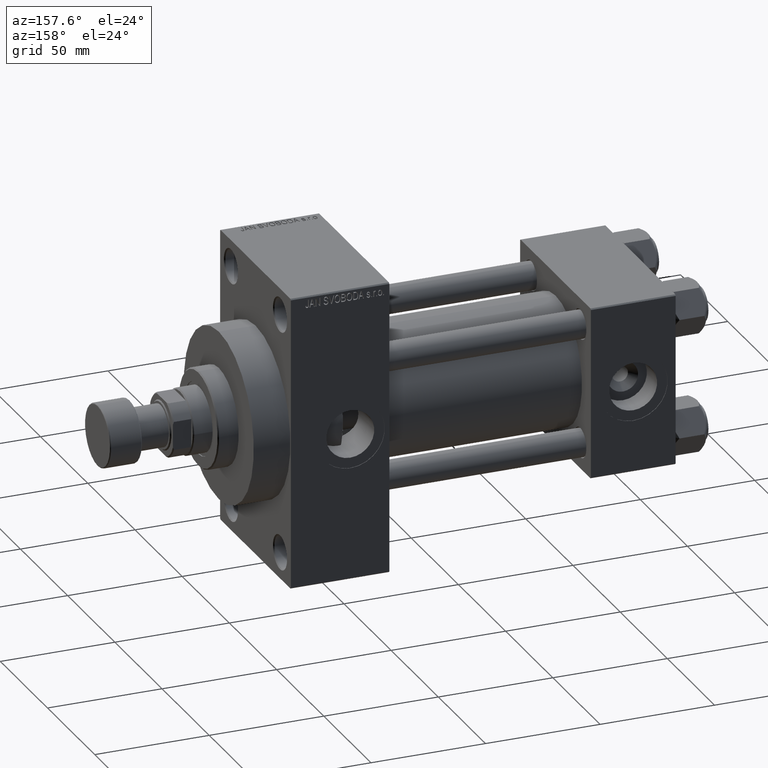
[diagram: clean part render]
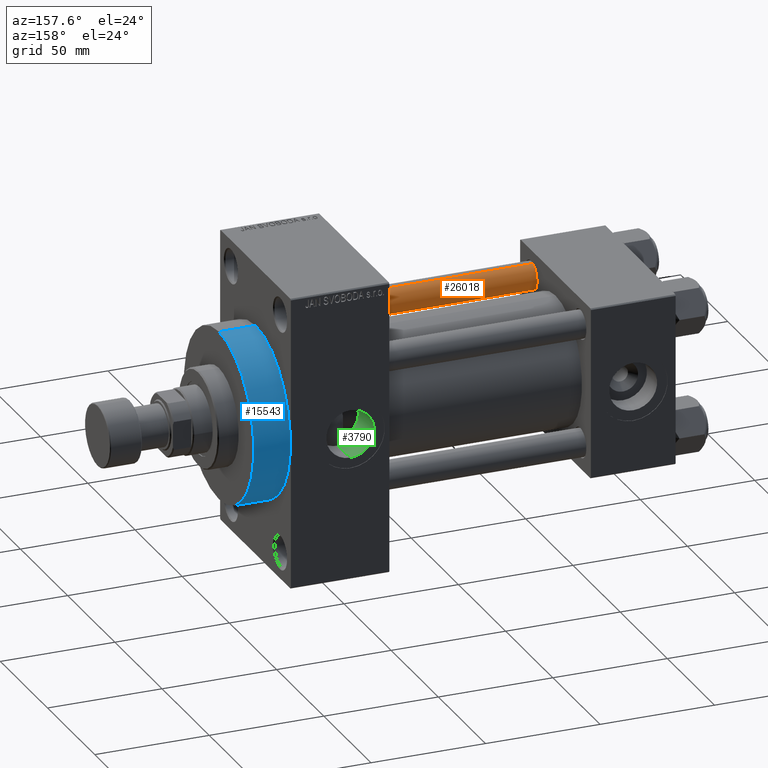
[diagram: same view with three faces highlighted in distinct colors, each labeled with its STEP entity id]
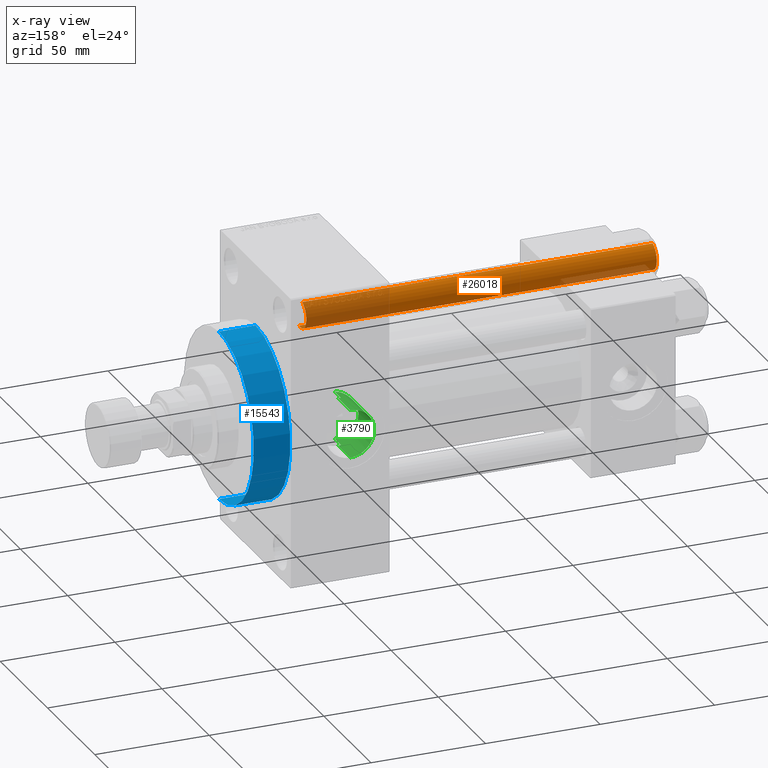
[diagram: x-ray of the same camera — body ghosted, the three highlighted faces saturated]
A machine part, auxiliary view with three faces highlighted in distinct colors.
The next image is the same camera in x-ray (body ghosted, the three faces saturated) — at least one of them is partly hidden behind the body in this view.
Their STEP definitions:

[orange] entity #26018 — the highlighted cylindrical surface (edge-blend (fillet) strip) has radius 6 mm, axis along (1, 0, 0).
#858 = ORIENTED_EDGE ( 'NONE', *, *, #23493, .T. ) ;
#2339 = CIRCLE ( 'NONE', #12753, 6.000000000000000888 ) ;
#2560 = DIRECTION ( 'NONE',  ( -0.000000000000000000, -0.000000000000000000, -1.000000000000000000 ) ) ;
#2784 = CARTESIAN_POINT ( 'NONE',  ( -6.000000000000000888, 0.000000000000000000, 153.5000000000000000 ) ) ;
#3156 = VERTEX_POINT ( 'NONE', #9412 ) ;
#4800 = DIRECTION ( 'NONE',  ( 1.000000000000000000, 0.000000000000000000, 0.000000000000000000 ) ) ;
#5482 = LINE ( 'NONE', #9498, #48405 ) ;
#5575 = CARTESIAN_POINT ( 'NONE',  ( -6.000000000000000888, 0.000000000000000000, 0.5000000000000281997 ) ) ;
#6011 = ORIENTED_EDGE ( 'NONE', *, *, #36064, .T. ) ;
#9412 = CARTESIAN_POINT ( 'NONE',  ( 6.000000000000000888, 7.347880794884120722E-16, 153.5000000000000000 ) ) ;
#9498 = CARTESIAN_POINT ( 'NONE',  ( 6.000000000000000888, 7.347880794884120722E-16, 154.0000000000000000 ) ) ;
#9518 = DIRECTION ( 'NONE',  ( -0.000000000000000000, -0.000000000000000000, 1.000000000000000000 ) ) ;
#11120 = DIRECTION ( 'NONE',  ( -0.000000000000000000, -0.000000000000000000, -1.000000000000000000 ) ) ;
#12575 = CARTESIAN_POINT ( 'NONE',  ( 6.000000000000000888, 7.347880794884120722E-16, 0.5000000000000281997 ) ) ;
#12753 = AXIS2_PLACEMENT_3D ( 'NONE', #43980, #9518, #48007 ) ;
#13937 = AXIS2_PLACEMENT_3D ( 'NONE', #47074, #43048, #4800 ) ;
#15170 = AXIS2_PLACEMENT_3D ( 'NONE', #45579, #11120, #19162 ) ;
#16614 = VERTEX_POINT ( 'NONE', #12575 ) ;
#17054 = DIRECTION ( 'NONE',  ( -0.000000000000000000, -0.000000000000000000, -1.000000000000000000 ) ) ;
#19162 = DIRECTION ( 'NONE',  ( -1.000000000000000000, 0.000000000000000000, 0.000000000000000000 ) ) ;
#23170 = VERTEX_POINT ( 'NONE', #2784 ) ;
#23493 = EDGE_CURVE ( 'NONE', #46792, #16614, #2339, .T. ) ;
#25319 = ORIENTED_EDGE ( 'NONE', *, *, #34535, .F. ) ;
#26018 = ADVANCED_FACE ( 'NONE', ( #30256 ), #45340, .T. ) ;
#29496 = CARTESIAN_POINT ( 'NONE',  ( -6.000000000000000888, 0.000000000000000000, 154.0000000000000000 ) ) ;
#29839 = EDGE_CURVE ( 'NONE', #23170, #46792, #33511, .T. ) ;
#30256 = FACE_OUTER_BOUND ( 'NONE', #32065, .T. ) ;
#32065 = EDGE_LOOP ( 'NONE', ( #25319, #6011, #39587, #858 ) ) ;
#33511 = LINE ( 'NONE', #29496, #38567 ) ;
#34535 = EDGE_CURVE ( 'NONE', #3156, #16614, #5482, .T. ) ;
#36064 = EDGE_CURVE ( 'NONE', #3156, #23170, #46085, .T. ) ;
#38567 = VECTOR ( 'NONE', #2560, 1000.000000000000000 ) ;
#39587 = ORIENTED_EDGE ( 'NONE', *, *, #29839, .T. ) ;
#43048 = DIRECTION ( 'NONE',  ( 0.000000000000000000, 0.000000000000000000, -1.000000000000000000 ) ) ;
#43980 = CARTESIAN_POINT ( 'NONE',  ( 0.000000000000000000, 0.000000000000000000, 0.5000000000000281997 ) ) ;
#45340 = CYLINDRICAL_SURFACE ( 'NONE', #15170, 6.000000000000000888 ) ;
#45579 = CARTESIAN_POINT ( 'NONE',  ( 0.000000000000000000, 0.000000000000000000, 154.0000000000000000 ) ) ;
#46085 = CIRCLE ( 'NONE', #13937, 6.000000000000000888 ) ;
#46792 = VERTEX_POINT ( 'NONE', #5575 ) ;
#47074 = CARTESIAN_POINT ( 'NONE',  ( 0.000000000000000000, 0.000000000000000000, 153.5000000000000000 ) ) ;
#48007 = DIRECTION ( 'NONE',  ( 1.000000000000000000, 0.000000000000000000, 0.000000000000000000 ) ) ;
#48405 = VECTOR ( 'NONE', #17054, 1000.000000000000000 ) ;

[blue] entity #15543 — the highlighted cylindrical surface (partial cylindrical patch) has radius 37 mm, axis along (-1, -0, -0).
#1289 = AXIS2_PLACEMENT_3D ( 'NONE', #4878, #16951, #24269 ) ;
#2068 = AXIS2_PLACEMENT_3D ( 'NONE', #6374, #48870, #21469 ) ;
#2404 = VERTEX_POINT ( 'NONE', #22717 ) ;
#3523 = VERTEX_POINT ( 'NONE', #19867 ) ;
#4878 = CARTESIAN_POINT ( 'NONE',  ( 184.0000000000000000, 0.000000000000000000, 0.000000000000000000 ) ) ;
#6104 = LINE ( 'NONE', #20697, #49230 ) ;
#6374 = CARTESIAN_POINT ( 'NONE',  ( 167.9999999999999716, 0.000000000000000000, 0.000000000000000000 ) ) ;
#8877 = DIRECTION ( 'NONE',  ( -1.000000000000000000, -0.000000000000000000, -0.000000000000000000 ) ) ;
#9812 = VERTEX_POINT ( 'NONE', #12320 ) ;
#10131 = CIRCLE ( 'NONE', #2068, 37.00000000000000000 ) ;
#11377 = ORIENTED_EDGE ( 'NONE', *, *, #48682, .T. ) ;
#12320 = CARTESIAN_POINT ( 'NONE',  ( 167.9999999999999716, 0.000000000000000000, 37.00000000000000000 ) ) ;
#14341 = VECTOR ( 'NONE', #43822, 1000.000000000000000 ) ;
#15543 = ADVANCED_FACE ( 'NONE', ( #48358 ), #29261, .T. ) ;
#15602 = ORIENTED_EDGE ( 'NONE', *, *, #39070, .F. ) ;
#16112 = CARTESIAN_POINT ( 'NONE',  ( 184.0000000000000000, 4.531193156845206793E-15, -37.00000000000000000 ) ) ;
#16951 = DIRECTION ( 'NONE',  ( 1.000000000000000000, 0.000000000000000000, 0.000000000000000000 ) ) ;
#18318 = VERTEX_POINT ( 'NONE', #16112 ) ;
#18956 = CIRCLE ( 'NONE', #1289, 37.00000000000000000 ) ;
#19867 = CARTESIAN_POINT ( 'NONE',  ( 184.0000000000000000, 0.000000000000000000, 37.00000000000000000 ) ) ;
#20697 = CARTESIAN_POINT ( 'NONE',  ( 184.0000000000000000, 0.000000000000000000, 37.00000000000000000 ) ) ;
#21469 = DIRECTION ( 'NONE',  ( 0.000000000000000000, 0.000000000000000000, -1.000000000000000000 ) ) ;
#22193 = DIRECTION ( 'NONE',  ( 0.000000000000000000, 0.000000000000000000, 1.000000000000000000 ) ) ;
#22717 = CARTESIAN_POINT ( 'NONE',  ( 167.9999999999999716, 4.531193156845206793E-15, -37.00000000000000000 ) ) ;
#24269 = DIRECTION ( 'NONE',  ( 0.000000000000000000, 0.000000000000000000, -1.000000000000000000 ) ) ;
#25713 = EDGE_LOOP ( 'NONE', ( #46043, #11377, #47084, #15602 ) ) ;
#29261 = CYLINDRICAL_SURFACE ( 'NONE', #34728, 37.00000000000000000 ) ;
#34728 = AXIS2_PLACEMENT_3D ( 'NONE', #37538, #37296, #22193 ) ;
#36033 = CARTESIAN_POINT ( 'NONE',  ( 184.0000000000000000, 4.531193156845206793E-15, -37.00000000000000000 ) ) ;
#37296 = DIRECTION ( 'NONE',  ( -1.000000000000000000, -0.000000000000000000, -0.000000000000000000 ) ) ;
#37538 = CARTESIAN_POINT ( 'NONE',  ( 184.0000000000000000, 0.000000000000000000, 0.000000000000000000 ) ) ;
#39070 = EDGE_CURVE ( 'NONE', #3523, #9812, #6104, .T. ) ;
#39560 = LINE ( 'NONE', #36033, #14341 ) ;
#43822 = DIRECTION ( 'NONE',  ( -1.000000000000000000, -0.000000000000000000, -0.000000000000000000 ) ) ;
#46043 = ORIENTED_EDGE ( 'NONE', *, *, #46427, .F. ) ;
#46427 = EDGE_CURVE ( 'NONE', #18318, #3523, #18956, .T. ) ;
#46496 = EDGE_CURVE ( 'NONE', #2404, #9812, #10131, .T. ) ;
#47084 = ORIENTED_EDGE ( 'NONE', *, *, #46496, .T. ) ;
#48358 = FACE_OUTER_BOUND ( 'NONE', #25713, .T. ) ;
#48682 = EDGE_CURVE ( 'NONE', #18318, #2404, #39560, .T. ) ;
#48870 = DIRECTION ( 'NONE',  ( 1.000000000000000000, 0.000000000000000000, 0.000000000000000000 ) ) ;
#49230 = VECTOR ( 'NONE', #8877, 1000.000000000000000 ) ;

[green] entity #3790 — the highlighted cylindrical surface (edge-blend (fillet) strip) has radius 10.48 mm, axis along (0, 1, 0).
#854 = CARTESIAN_POINT ( 'NONE',  ( 138.2648511999845482, 18.00804264202515270, -9.796911922746353696 ) ) ;
#1131 = CARTESIAN_POINT ( 'NONE',  ( 142.0000000000000284, 37.29999999999999005, -10.47999999999998799 ) ) ;
#1839 = CARTESIAN_POINT ( 'NONE',  ( 132.0031508505379350, 20.25711897762383984, 3.161628577960766684 ) ) ;
#2168 = CARTESIAN_POINT ( 'NONE',  ( 141.1611364518797984, 24.35049096341793273, 10.45498279016080012 ) ) ;
#2306 = EDGE_CURVE ( 'NONE', #32863, #18586, #28785, .T. ) ;
#2587 = CARTESIAN_POINT ( 'NONE',  ( 131.5957902639762267, 20.46134169501556599, -1.299266796120100764 ) ) ;
#2839 = CARTESIAN_POINT ( 'NONE',  ( 131.5775683569960961, 20.47037528635599202, 1.274177104114178727 ) ) ;
#3050 = B_SPLINE_CURVE_WITH_KNOTS ( 'NONE', 3,
 ( #40662, #2168, #48211, #44438 ),
 .UNSPECIFIED., .F., .F.,
 ( 4, 4 ),
 ( 0.000000000000000000, 0.001255586767787714641 ),
 .UNSPECIFIED. ) ;
#3790 = ADVANCED_FACE ( 'NONE', ( #10542 ), #29170, .F. ) ;
#5070 = CIRCLE ( 'NONE', #24365, 10.47999999999998622 ) ;
#5624 = CARTESIAN_POINT ( 'NONE',  ( 138.2603242755634199, 18.00896673207868659, 9.795222948000837704 ) ) ;
#6117 = CARTESIAN_POINT ( 'NONE',  ( 131.9940503003028596, 20.26077342853018237, -3.179994118914070356 ) ) ;
#6131 = DIRECTION ( 'NONE',  ( -0.000000000000000000, 1.000000000000000000, -0.000000000000000000 ) ) ;
#6363 = CARTESIAN_POINT ( 'NONE',  ( 131.5202887705627290, 20.49985237489623913, -0.3308603822798242833 ) ) ;
#6409 = CARTESIAN_POINT ( 'NONE',  ( 141.1580741051582493, 24.35064928096444703, -10.45461191700780645 ) ) ;
#6969 = ORIENTED_EDGE ( 'NONE', *, *, #44501, .F. ) ;
#8534 = VECTOR ( 'NONE', #22227, 1000.000000000000000 ) ;
#8638 = VECTOR ( 'NONE', #6131, 1000.000000000000000 ) ;
#9366 = ORIENTED_EDGE ( 'NONE', *, *, #38749, .F. ) ;
#9444 = VERTEX_POINT ( 'NONE', #49181 ) ;
#9642 = CARTESIAN_POINT ( 'NONE',  ( 131.6413500805443846, 20.43816521463577374, -1.622339351879672487 ) ) ;
#9897 = CARTESIAN_POINT ( 'NONE',  ( 140.7400000000000091, 17.66372554134603945, 10.40398000767012299 ) ) ;
#10147 = CARTESIAN_POINT ( 'NONE',  ( 137.6797447738802020, 18.13843621863674826, -9.553335258510079697 ) ) ;
#10295 = CARTESIAN_POINT ( 'NONE',  ( 142.0000000000000284, -29.64191626734003648, 10.47999999999998444 ) ) ;
#10542 = FACE_OUTER_BOUND ( 'NONE', #16280, .T. ) ;
#10642 = CARTESIAN_POINT ( 'NONE',  ( 132.1038390309689703, 20.20751560694123938, 3.463692888950883564 ) ) ;
#11241 = ORIENTED_EDGE ( 'NONE', *, *, #47450, .T. ) ;
#11660 = VECTOR ( 'NONE', #14220, 1000.000000000000000 ) ;
#12247 = ORIENTED_EDGE ( 'NONE', *, *, #21833, .T. ) ;
#13656 = CARTESIAN_POINT ( 'NONE',  ( 139.4678957388831577, 17.78974368295221353, 10.18933358872179795 ) ) ;
#13701 = CARTESIAN_POINT ( 'NONE',  ( 142.0000000000000284, 24.33967132070604933, -10.47999999999998799 ) ) ;
#13911 = CARTESIAN_POINT ( 'NONE',  ( 134.5883649652937208, 19.11041985978089031, 7.435544696446130253 ) ) ;
#14220 = DIRECTION ( 'NONE',  ( -0.000000000000000000, 1.000000000000000000, -0.000000000000000000 ) ) ;
#16280 = EDGE_LOOP ( 'NONE', ( #9366, #12247, #41880, #46671, #6969, #11241, #21061, #43303 ) ) ;
#16448 = CARTESIAN_POINT ( 'NONE',  ( 138.5622284196643079, 17.94851741335674333, -9.905176136510938534 ) ) ;
#17186 = CARTESIAN_POINT ( 'NONE',  ( 136.0285517498637660, 18.59748531110673753, 8.634753340253860543 ) ) ;
#17432 = CARTESIAN_POINT ( 'NONE',  ( 133.7616963509113930, 19.44597719880566444, -6.507545042971039528 ) ) ;
#17683 = CARTESIAN_POINT ( 'NONE',  ( 136.5540551289639666, 18.43336478924038957, -8.976070117816941973 ) ) ;
#17923 = DIRECTION ( 'NONE',  ( 0.000000000000000000, 0.000000000000000000, 1.000000000000000000 ) ) ;
#17928 = CARTESIAN_POINT ( 'NONE',  ( 133.3865427488642865, 19.60931742929915345, 6.003004479396524040 ) ) ;
#18179 = CARTESIAN_POINT ( 'NONE',  ( 140.0932392917489722, 17.70986068370255140, 10.32565243574135394 ) ) ;
#18211 = VERTEX_POINT ( 'NONE', #1131 ) ;
#18586 = VERTEX_POINT ( 'NONE', #30915 ) ;
#18923 = DIRECTION ( 'NONE',  ( 0.000000000000000000, 1.000000000000000000, 0.000000000000000000 ) ) ;
#19435 = VERTEX_POINT ( 'NONE', #41043 ) ;
#19959 = CARTESIAN_POINT ( 'NONE',  ( 140.0935359396745810, 17.70983952302580278, -10.32568836202974971 ) ) ;
#21061 = ORIENTED_EDGE ( 'NONE', *, *, #26789, .F. ) ;
#21237 = CARTESIAN_POINT ( 'NONE',  ( 140.7400000000000091, -29.64191626734003648, 10.40398000767012299 ) ) ;
#21711 = CARTESIAN_POINT ( 'NONE',  ( 132.8934847984987471, 19.83246682013213302, 5.196259042236620829 ) ) ;
#21833 = EDGE_CURVE ( 'NONE', #19435, #18211, #33355, .T. ) ;
#21965 = CARTESIAN_POINT ( 'NONE',  ( 136.0314513987549674, 18.59653710660908033, -8.636815275402122793 ) ) ;
#22227 = DIRECTION ( 'NONE',  ( 0.000000000000000000, -1.000000000000000000, 0.000000000000000000 ) ) ;
#23676 = CARTESIAN_POINT ( 'NONE',  ( 142.0000000000000284, 24.33967132070604933, 10.47999999999998444 ) ) ;
#24365 = AXIS2_PLACEMENT_3D ( 'NONE', #45584, #18923, #17923 ) ;
#25002 = CARTESIAN_POINT ( 'NONE',  ( 131.7549241387679899, 20.38083843111444082, 2.230218096741756195 ) ) ;
#25254 = CARTESIAN_POINT ( 'NONE',  ( 131.5353429949686870, 20.49214410358180416, -0.6531678235494173812 ) ) ;
#25500 = CARTESIAN_POINT ( 'NONE',  ( 133.3906553486646089, 19.60752197575040867, -6.008635476422266031 ) ) ;
#25644 = DIRECTION ( 'NONE',  ( -0.000000000000000000, 1.000000000000000000, -0.000000000000000000 ) ) ;
#26789 = EDGE_CURVE ( 'NONE', #32863, #29705, #36216, .T. ) ;
#27211 = VERTEX_POINT ( 'NONE', #23676 ) ;
#27980 = AXIS2_PLACEMENT_3D ( 'NONE', #44741, #25644, #40968 ) ;
#28589 = CARTESIAN_POINT ( 'NONE',  ( 140.7400000000000091, 17.66372554134603945, 10.40398000767012299 ) ) ;
#28785 = LINE ( 'NONE', #44361, #8638 ) ;
#29023 = CARTESIAN_POINT ( 'NONE',  ( 132.4587195145564351, 20.03597512078205867, 4.346863487503871859 ) ) ;
#29170 = CYLINDRICAL_SURFACE ( 'NONE', #27980, 10.47999999999998622 ) ;
#29680 = CARTESIAN_POINT ( 'NONE',  ( 140.7400000000000091, 17.66372554134603945, -10.40398000767012654 ) ) ;
#29705 = VERTEX_POINT ( 'NONE', #28589 ) ;
#30915 = CARTESIAN_POINT ( 'NONE',  ( 140.7400000000000091, 24.37226292324946542, -10.40398000767012654 ) ) ;
#32792 = CARTESIAN_POINT ( 'NONE',  ( 132.3316230008213097, 20.09694501355984997, 4.056310707489499734 ) ) ;
#32839 = CARTESIAN_POINT ( 'NONE',  ( 141.5796744023297435, 24.33967132070604933, -10.47999999999998799 ) ) ;
#32863 = VERTEX_POINT ( 'NONE', #29680 ) ;
#33048 = CARTESIAN_POINT ( 'NONE',  ( 138.5586034380959859, 17.94919963049266798, 9.903944034907004479 ) ) ;
#33298 = CARTESIAN_POINT ( 'NONE',  ( 136.5501105018311137, 18.43457416514922897, 8.973569604830398561 ) ) ;
#33318 = LINE ( 'NONE', #21237, #8534 ) ;
#33355 = LINE ( 'NONE', #48681, #11660 ) ;
#35321 = CARTESIAN_POINT ( 'NONE',  ( 139.4692110592001768, 17.78960674829260924, -10.18955633345269796 ) ) ;
#35576 = CARTESIAN_POINT ( 'NONE',  ( 140.7400000000000091, 17.66372554134603945, -10.40398000767012654 ) ) ;
#35954 = EDGE_CURVE ( 'NONE', #18211, #47872, #5070, .T. ) ;
#36216 = B_SPLINE_CURVE_WITH_KNOTS ( 'NONE', 3,
 ( #35576, #19959, #35321, #16448, #854, #10147, #45100, #17683, #21965, #40815, #47878, #17432, #25500, #44597, #44093, #6117, #37311, #9642, #2587, #25254, #6363, #40576, #2839, #25002, #36319, #1839, #10642, #32792, #29023, #48121, #21711, #17928, #44347, #13911, #37057, #17186, #33298, #36802, #36563, #5624, #33048, #13656, #18179, #9897 ),
 .UNSPECIFIED., .F., .F.,
 ( 4, 2, 2, 2, 2, 2, 2, 2, 2, 2, 2, 2, 2, 2, 2, 2, 2, 2, 2, 2, 2, 4 ),
 ( 0.000000000000000000, 0.001926809448868516171, 0.002890214173302813831, 0.003853618897737112140, 0.005780428346605707458, 0.007707237795474304078, 0.009634047244342899829, 0.01156085669321149298, 0.01348766614208008786, 0.01445107086651438097, 0.01541447559094867061, 0.01734128503981725161, 0.01830468976425154298, 0.01926809448868583435, 0.02023149921312012572, 0.02119490393755441709, 0.02312171338642299637, 0.02504852283529158258, 0.02697533228416016879, 0.02793873700859449138, 0.02890214173302882092, 0.03082895118189755285 ),
 .UNSPECIFIED. ) ;
#36319 = CARTESIAN_POINT ( 'NONE',  ( 131.8288109744087251, 20.34372046973747317, 2.545545518699389831 ) ) ;
#36563 = CARTESIAN_POINT ( 'NONE',  ( 137.6731848345800415, 18.13998450134082319, 9.550405103935318607 ) ) ;
#36802 = CARTESIAN_POINT ( 'NONE',  ( 137.3846545558102719, 18.21123748805220899, 9.414241774011495423 ) ) ;
#37057 = CARTESIAN_POINT ( 'NONE',  ( 135.0492562722549224, 18.93465352367355337, 7.867929910865550269 ) ) ;
#37311 = CARTESIAN_POINT ( 'NONE',  ( 131.8195863185151779, 20.34821612510051381, -2.569519367473409144 ) ) ;
#38749 = EDGE_CURVE ( 'NONE', #19435, #18586, #39479, .T. ) ;
#39479 = B_SPLINE_CURVE_WITH_KNOTS ( 'NONE', 3,
 ( #13701, #32839, #6409, #48168 ),
 .UNSPECIFIED., .F., .F.,
 ( 4, 4 ),
 ( 0.03437190755806009829, 0.03561776921873222035 ),
 .UNSPECIFIED. ) ;
#40576 = CARTESIAN_POINT ( 'NONE',  ( 131.5194347766352791, 20.50028895312889787, 0.6338901944550114909 ) ) ;
#40662 = CARTESIAN_POINT ( 'NONE',  ( 140.7400000000000091, 24.37226292324946542, 10.40398000767012299 ) ) ;
#40815 = CARTESIAN_POINT ( 'NONE',  ( 135.0506999956342042, 18.93410654091559309, -7.869268069913824881 ) ) ;
#40968 = DIRECTION ( 'NONE',  ( 0.000000000000000000, 0.000000000000000000, 1.000000000000000000 ) ) ;
#41043 = CARTESIAN_POINT ( 'NONE',  ( 142.0000000000000284, 24.33967132070604933, -10.47999999999998799 ) ) ;
#41880 = ORIENTED_EDGE ( 'NONE', *, *, #35954, .T. ) ;
#43303 = ORIENTED_EDGE ( 'NONE', *, *, #2306, .T. ) ;
#44093 = CARTESIAN_POINT ( 'NONE',  ( 132.4497435801186782, 20.03964341536166671, -4.361650410534312350 ) ) ;
#44347 = CARTESIAN_POINT ( 'NONE',  ( 133.7585215008534192, 19.44730781319916346, 6.503667501390171246 ) ) ;
#44361 = CARTESIAN_POINT ( 'NONE',  ( 140.7400000000000091, -29.64191626734003648, -10.40398000767012654 ) ) ;
#44438 = CARTESIAN_POINT ( 'NONE',  ( 142.0000000000000284, 24.33967132070604933, 10.47999999999998444 ) ) ;
#44501 = EDGE_CURVE ( 'NONE', #9444, #27211, #3050, .T. ) ;
#44597 = CARTESIAN_POINT ( 'NONE',  ( 132.7349221210387782, 19.90416465987142303, -4.937899098886185278 ) ) ;
#44741 = CARTESIAN_POINT ( 'NONE',  ( 142.0000000000000284, -29.64191626734003648, -2.032879073410320814E-15 ) ) ;
#44749 = LINE ( 'NONE', #10295, #48097 ) ;
#45100 = CARTESIAN_POINT ( 'NONE',  ( 137.3908628646930197, 18.20965404972804080, -9.417308131441620489 ) ) ;
#45584 = CARTESIAN_POINT ( 'NONE',  ( 142.0000000000000284, 37.29999999999999005, -2.032879073410320814E-15 ) ) ;
#46671 = ORIENTED_EDGE ( 'NONE', *, *, #49785, .F. ) ;
#47450 = EDGE_CURVE ( 'NONE', #9444, #29705, #33318, .T. ) ;
#47872 = VERTEX_POINT ( 'NONE', #48082 ) ;
#47878 = CARTESIAN_POINT ( 'NONE',  ( 134.5898559263963818, 19.10985655083376855, -7.436904887742086245 ) ) ;
#48082 = CARTESIAN_POINT ( 'NONE',  ( 142.0000000000000284, 37.29999999999999005, 10.47999999999998444 ) ) ;
#48097 = VECTOR ( 'NONE', #48773, 1000.000000000000000 ) ;
#48121 = CARTESIAN_POINT ( 'NONE',  ( 132.7394326810550353, 19.90382809429886279, 4.916619612313999355 ) ) ;
#48168 = CARTESIAN_POINT ( 'NONE',  ( 140.7400000000000091, 24.37226292324946542, -10.40398000767012654 ) ) ;
#48211 = CARTESIAN_POINT ( 'NONE',  ( 141.5811236364006049, 24.33967132070604933, 10.47999999999998444 ) ) ;
#48681 = CARTESIAN_POINT ( 'NONE',  ( 142.0000000000000284, -29.64191626734003648, -10.47999999999998799 ) ) ;
#48773 = DIRECTION ( 'NONE',  ( -0.000000000000000000, 1.000000000000000000, -0.000000000000000000 ) ) ;
#49181 = CARTESIAN_POINT ( 'NONE',  ( 140.7400000000000091, 24.37226292324946542, 10.40398000767012299 ) ) ;
#49785 = EDGE_CURVE ( 'NONE', #27211, #47872, #44749, .T. ) ;